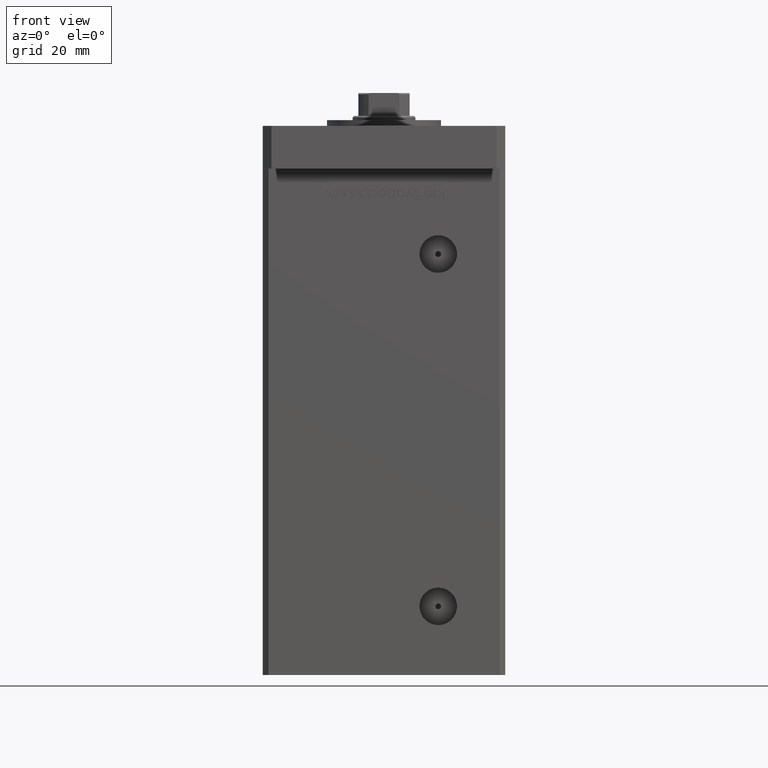
[diagram: clean part render]
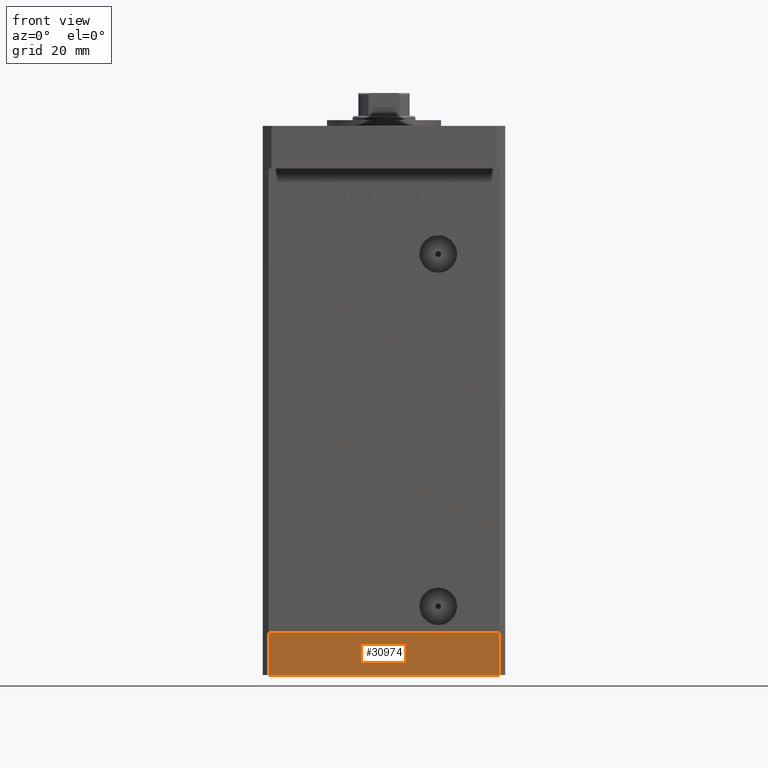
[diagram: same view with one face highlighted and labeled with its STEP entity id]
A machine part, front view. The second image highlights one B-rep face of the part: STEP entity #30974.
In plain terms, the highlighted planar face has unit normal (-0, -1, -0).
Its self-contained STEP definition (entity closure, byte-faithful):
#221 = CARTESIAN_POINT ( 'NONE',  ( -40.49999999999999289, -37.50000000000002132, -15.00000000000000000 ) ) ;
#591 = CARTESIAN_POINT ( 'NONE',  ( -40.49999999999999289, -37.50000000000002132, -15.00000000000000000 ) ) ;
#1952 = EDGE_CURVE ( 'NONE', #52129, #24512, #25067, .T. ) ;
#5302 = LINE ( 'NONE', #33516, #15034 ) ;
#9462 = VERTEX_POINT ( 'NONE', #44696 ) ;
#9638 = DIRECTION ( 'NONE',  ( 0.000000000000000000, 0.000000000000000000, 1.000000000000000000 ) ) ;
#9930 = AXIS2_PLACEMENT_3D ( 'NONE', #221, #33296, #44731 ) ;
#10518 = DIRECTION ( 'NONE',  ( 0.000000000000000000, 0.000000000000000000, 1.000000000000000000 ) ) ;
#11428 = DIRECTION ( 'NONE',  ( 1.000000000000000000, 1.713307136767217096E-16, 0.000000000000000000 ) ) ;
#13752 = ORIENTED_EDGE ( 'NONE', *, *, #1952, .T. ) ;
#14095 = EDGE_CURVE ( 'NONE', #52129, #9462, #43895, .T. ) ;
#15034 = VECTOR ( 'NONE', #9638, 1000.000000000000000 ) ;
#16107 = VECTOR ( 'NONE', #16942, 1000.000000000000000 ) ;
#16942 = DIRECTION ( 'NONE',  ( 1.000000000000000000, 1.713307136767217096E-16, 0.000000000000000000 ) ) ;
#17046 = FACE_OUTER_BOUND ( 'NONE', #22092, .T. ) ;
#20034 = PLANE ( 'NONE',  #9930 ) ;
#20779 = VECTOR ( 'NONE', #10518, 1000.000000000000000 ) ;
#21256 = CARTESIAN_POINT ( 'NONE',  ( 40.50000000000000000, -37.50000000000000711, 0.000000000000000000 ) ) ;
#22092 = EDGE_LOOP ( 'NONE', ( #25701, #52464, #13752, #52402 ) ) ;
#22741 = CARTESIAN_POINT ( 'NONE',  ( -40.49999999999999289, -37.50000000000002132, -15.00000000000000000 ) ) ;
#24428 = EDGE_CURVE ( 'NONE', #24512, #37385, #5302, .T. ) ;
#24512 = VERTEX_POINT ( 'NONE', #48929 ) ;
#25067 = LINE ( 'NONE', #37540, #16107 ) ;
#25701 = ORIENTED_EDGE ( 'NONE', *, *, #43429, .F. ) ;
#30974 = ADVANCED_FACE ( 'NONE', ( #17046 ), #20034, .T. ) ;
#32037 = CARTESIAN_POINT ( 'NONE',  ( -40.49999999999999289, -37.50000000000002132, 0.000000000000000000 ) ) ;
#33296 = DIRECTION ( 'NONE',  ( 1.713307136767217096E-16, -1.000000000000000000, 0.000000000000000000 ) ) ;
#33516 = CARTESIAN_POINT ( 'NONE',  ( 40.50000000000000000, -37.50000000000000711, -15.00000000000000000 ) ) ;
#35843 = LINE ( 'NONE', #32037, #40062 ) ;
#37385 = VERTEX_POINT ( 'NONE', #21256 ) ;
#37540 = CARTESIAN_POINT ( 'NONE',  ( -40.49999999999999289, -37.50000000000002132, -15.00000000000000000 ) ) ;
#40062 = VECTOR ( 'NONE', #11428, 1000.000000000000000 ) ;
#43429 = EDGE_CURVE ( 'NONE', #9462, #37385, #35843, .T. ) ;
#43895 = LINE ( 'NONE', #22741, #20779 ) ;
#44696 = CARTESIAN_POINT ( 'NONE',  ( -40.49999999999999289, -37.50000000000002132, 0.000000000000000000 ) ) ;
#44731 = DIRECTION ( 'NONE',  ( 1.000000000000000000, 1.713307136767217096E-16, 0.000000000000000000 ) ) ;
#48929 = CARTESIAN_POINT ( 'NONE',  ( 40.50000000000000000, -37.50000000000000711, -15.00000000000000000 ) ) ;
#52129 = VERTEX_POINT ( 'NONE', #591 ) ;
#52402 = ORIENTED_EDGE ( 'NONE', *, *, #24428, .T. ) ;
#52464 = ORIENTED_EDGE ( 'NONE', *, *, #14095, .F. ) ;